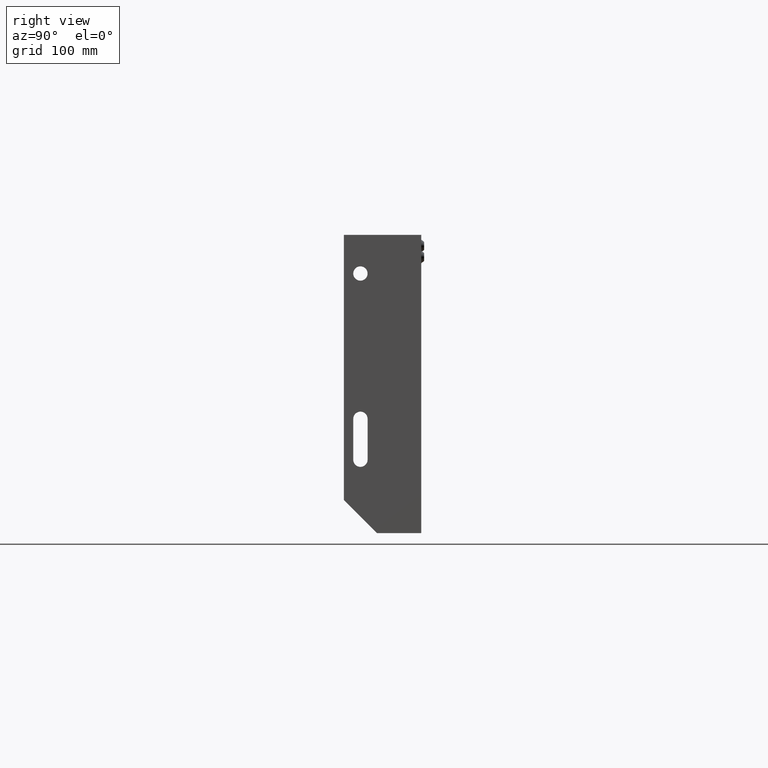
[diagram: clean part render]
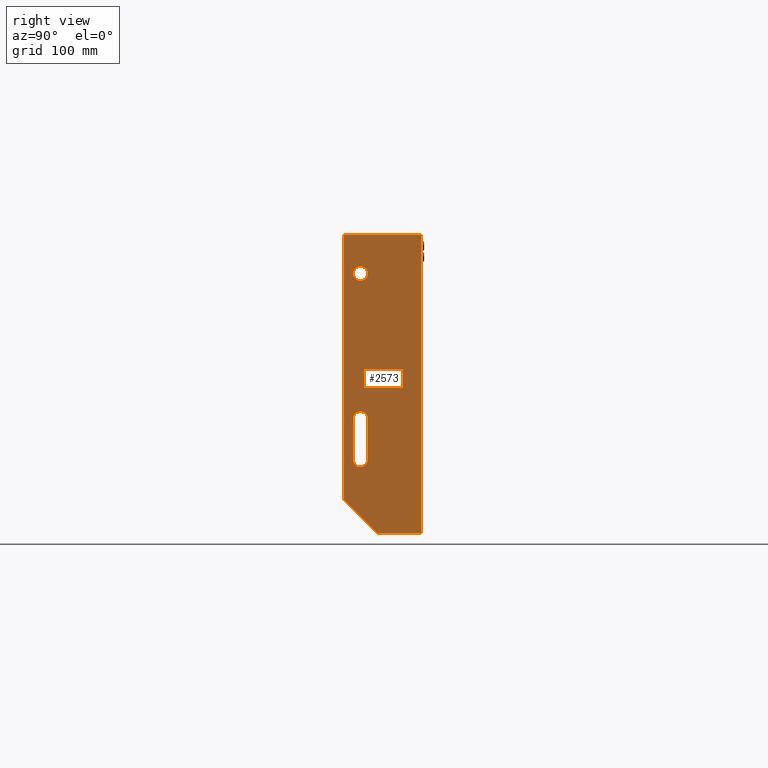
[diagram: same view with one face highlighted and labeled with its STEP entity id]
A machine part, right view. The second image highlights one B-rep face of the part: STEP entity #2573.
In plain terms, the highlighted planar face has unit normal (-1, 0, 0).
Its self-contained STEP definition (entity closure, byte-faithful):
#260 = FACE_BOUND ( 'NONE', #1184, .T. ) ;
#551 = ORIENTED_EDGE ( 'NONE', *, *, #19892, .F. ) ;
#972 = EDGE_CURVE ( 'NONE', #3770, #2846, #20979, .T. ) ;
#1184 = EDGE_LOOP ( 'NONE', ( #9736, #5749, #551, #20481, #2596 ) ) ;
#1252 = ORIENTED_EDGE ( 'NONE', *, *, #11578, .F. ) ;
#1356 = AXIS2_PLACEMENT_3D ( 'NONE', #20388, #2540, #12311 ) ;
#1365 = VERTEX_POINT ( 'NONE', #17236 ) ;
#1578 = VECTOR ( 'NONE', #12521, 1000.000000000000000 ) ;
#1589 = EDGE_CURVE ( 'NONE', #6382, #17509, #11763, .T. ) ;
#1989 = VERTEX_POINT ( 'NONE', #10033 ) ;
#2540 = DIRECTION ( 'NONE',  ( 1.000000000000000000, 0.0000000000000000000, 0.0000000000000000000 ) ) ;
#2573 = ADVANCED_FACE ( 'NONE', ( #260, #21883, #6144 ), #10808, .F. ) ;
#2596 = ORIENTED_EDGE ( 'NONE', *, *, #16659, .F. ) ;
#2846 = VERTEX_POINT ( 'NONE', #2957 ) ;
#2957 = CARTESIAN_POINT ( 'NONE',  ( 300.0000000000000000, 70.00000000000011400, 0.0000000000000000000 ) ) ;
#2994 = CARTESIAN_POINT ( 'NONE',  ( 300.0000000000000000, 8.500000000000072800, -166.4999999999999400 ) ) ;
#3246 = CIRCLE ( 'NONE', #22957, 6.500000000000005300 ) ;
#3397 = ORIENTED_EDGE ( 'NONE', *, *, #10109, .T. ) ;
#3609 = AXIS2_PLACEMENT_3D ( 'NONE', #23279, #5531, #25248 ) ;
#3730 = EDGE_CURVE ( 'NONE', #7483, #15548, #5998, .T. ) ;
#3770 = VERTEX_POINT ( 'NONE', #14303 ) ;
#4361 = CARTESIAN_POINT ( 'NONE',  ( 300.0000000000000000, 15.00000000000009200, -203.4999999999998900 ) ) ;
#4749 = EDGE_LOOP ( 'NONE', ( #3397, #10907, #12380, #6603, #5837 ) ) ;
#5462 = CIRCLE ( 'NONE', #3609, 6.499999999999999100 ) ;
#5531 = DIRECTION ( 'NONE',  ( 1.000000000000000000, 0.0000000000000000000, 0.0000000000000000000 ) ) ;
#5749 = ORIENTED_EDGE ( 'NONE', *, *, #1589, .F. ) ;
#5837 = ORIENTED_EDGE ( 'NONE', *, *, #20879, .T. ) ;
#5998 = CIRCLE ( 'NONE', #1356, 6.499999999999999100 ) ;
#6099 = LINE ( 'NONE', #15506, #10734 ) ;
#6144 = FACE_OUTER_BOUND ( 'NONE', #4749, .T. ) ;
#6161 = DIRECTION ( 'NONE',  ( -0.0000000000000000000, -0.0000000000000000000, 1.000000000000000000 ) ) ;
#6382 = VERTEX_POINT ( 'NONE', #8401 ) ;
#6482 = CARTESIAN_POINT ( 'NONE',  ( 300.0000000000000000, 15.00000000000008900, -166.4999999999999400 ) ) ;
#6499 = AXIS2_PLACEMENT_3D ( 'NONE', #22110, #6503, #14127 ) ;
#6503 = DIRECTION ( 'NONE',  ( 1.000000000000000000, 0.0000000000000000000, 0.0000000000000000000 ) ) ;
#6559 = DIRECTION ( 'NONE',  ( 0.0000000000000000000, 0.0000000000000000000, 1.000000000000000000 ) ) ;
#6603 = ORIENTED_EDGE ( 'NONE', *, *, #972, .T. ) ;
#7196 = CARTESIAN_POINT ( 'NONE',  ( 300.0000000000000000, 21.50000000000009600, -203.4999999999998900 ) ) ;
#7483 = VERTEX_POINT ( 'NONE', #11149 ) ;
#7794 = EDGE_CURVE ( 'NONE', #14569, #1989, #10509, .T. ) ;
#8176 = DIRECTION ( 'NONE',  ( -0.0000000000000000000, 0.7071067811865491300, -0.7071067811865459100 ) ) ;
#8401 = CARTESIAN_POINT ( 'NONE',  ( 300.0000000000000000, 21.50000000000010700, -166.4999999999999400 ) ) ;
#8632 = VECTOR ( 'NONE', #6161, 1000.000000000000000 ) ;
#8883 = DIRECTION ( 'NONE',  ( -0.0000000000000000000, 1.000000000000000000, -0.0000000000000000000 ) ) ;
#8998 = DIRECTION ( 'NONE',  ( -0.0000000000000000000, -1.000000000000000000, -0.0000000000000000000 ) ) ;
#9736 = ORIENTED_EDGE ( 'NONE', *, *, #18215, .F. ) ;
#10033 = CARTESIAN_POINT ( 'NONE',  ( 300.0000000000000000, 30.00000000000011700, -270.0000000000000000 ) ) ;
#10035 = CARTESIAN_POINT ( 'NONE',  ( 300.0000000000000000, 70.00000000000011400, 0.0000000000000000000 ) ) ;
#10109 = EDGE_CURVE ( 'NONE', #1365, #14569, #6099, .T. ) ;
#10214 = DIRECTION ( 'NONE',  ( 0.0000000000000000000, 0.0000000000000000000, -1.000000000000000000 ) ) ;
#10387 = LINE ( 'NONE', #24647, #12263 ) ;
#10444 = DIRECTION ( 'NONE',  ( -1.000000000000000000, 0.0000000000000000000, 0.0000000000000000000 ) ) ;
#10509 = LINE ( 'NONE', #12169, #17921 ) ;
#10734 = VECTOR ( 'NONE', #19358, 1000.000000000000000 ) ;
#10808 = PLANE ( 'NONE',  #12597 ) ;
#10907 = ORIENTED_EDGE ( 'NONE', *, *, #7794, .T. ) ;
#11116 = VECTOR ( 'NONE', #8998, 1000.000000000000000 ) ;
#11149 = CARTESIAN_POINT ( 'NONE',  ( 300.0000000000000000, 15.00000000000008900, -28.50000000000000400 ) ) ;
#11302 = DIRECTION ( 'NONE',  ( 0.0000000000000000000, 3.750753461571482800E-016, -1.000000000000000000 ) ) ;
#11578 = EDGE_CURVE ( 'NONE', #15548, #7483, #5462, .T. ) ;
#11763 = CIRCLE ( 'NONE', #22283, 6.500000000000005300 ) ;
#12169 = CARTESIAN_POINT ( 'NONE',  ( 300.0000000000000000, 30.00000000000011700, -270.0000000000000000 ) ) ;
#12263 = VECTOR ( 'NONE', #8883, 1000.000000000000000 ) ;
#12311 = DIRECTION ( 'NONE',  ( 0.0000000000000000000, 0.0000000000000000000, -1.000000000000000000 ) ) ;
#12380 = ORIENTED_EDGE ( 'NONE', *, *, #19377, .T. ) ;
#12521 = DIRECTION ( 'NONE',  ( 0.0000000000000000000, 3.750753461571482800E-016, 1.000000000000000000 ) ) ;
#12597 = AXIS2_PLACEMENT_3D ( 'NONE', #16510, #10444, #6559 ) ;
#12854 = EDGE_CURVE ( 'NONE', #18477, #24124, #3246, .T. ) ;
#13269 = VECTOR ( 'NONE', #11302, 1000.000000000000000 ) ;
#13336 = LINE ( 'NONE', #14252, #1578 ) ;
#13480 = CARTESIAN_POINT ( 'NONE',  ( 300.0000000000000000, 8.500000000000072800, -166.4999999999999400 ) ) ;
#14127 = DIRECTION ( 'NONE',  ( 0.0000000000000000000, 0.0000000000000000000, -1.000000000000000000 ) ) ;
#14252 = CARTESIAN_POINT ( 'NONE',  ( 300.0000000000000000, 21.50000000000009200, -203.4999999999998900 ) ) ;
#14278 = DIRECTION ( 'NONE',  ( 0.0000000000000000000, 0.0000000000000000000, -1.000000000000000000 ) ) ;
#14303 = CARTESIAN_POINT ( 'NONE',  ( 300.0000000000000000, 70.00000000000011400, -270.0000000000000000 ) ) ;
#14569 = VERTEX_POINT ( 'NONE', #23566 ) ;
#15506 = CARTESIAN_POINT ( 'NONE',  ( 300.0000000000000000, 1.102182119232617800E-013, -240.0000000000001700 ) ) ;
#15548 = VERTEX_POINT ( 'NONE', #19959 ) ;
#15802 = CIRCLE ( 'NONE', #6499, 6.500000000000005300 ) ;
#16510 = CARTESIAN_POINT ( 'NONE',  ( 300.0000000000000000, 0.0000000000000000000, 0.0000000000000000000 ) ) ;
#16659 = EDGE_CURVE ( 'NONE', #19456, #18477, #15802, .T. ) ;
#17236 = CARTESIAN_POINT ( 'NONE',  ( 300.0000000000000000, 1.102182119232617800E-013, 0.0000000000000000000 ) ) ;
#17509 = VERTEX_POINT ( 'NONE', #2994 ) ;
#17878 = LINE ( 'NONE', #13480, #13269 ) ;
#17921 = VECTOR ( 'NONE', #8176, 1000.000000000000100 ) ;
#18215 = EDGE_CURVE ( 'NONE', #17509, #19456, #17878, .T. ) ;
#18477 = VERTEX_POINT ( 'NONE', #22633 ) ;
#18852 = CARTESIAN_POINT ( 'NONE',  ( 300.0000000000000000, 1.102182119232617800E-013, 0.0000000000000000000 ) ) ;
#19358 = DIRECTION ( 'NONE',  ( -0.0000000000000000000, -0.0000000000000000000, -1.000000000000000000 ) ) ;
#19377 = EDGE_CURVE ( 'NONE', #1989, #3770, #10387, .T. ) ;
#19456 = VERTEX_POINT ( 'NONE', #24983 ) ;
#19892 = EDGE_CURVE ( 'NONE', #24124, #6382, #13336, .T. ) ;
#19959 = CARTESIAN_POINT ( 'NONE',  ( 300.0000000000000000, 15.00000000000008900, -41.50000000000000000 ) ) ;
#20275 = DIRECTION ( 'NONE',  ( 1.000000000000000000, 0.0000000000000000000, 0.0000000000000000000 ) ) ;
#20388 = CARTESIAN_POINT ( 'NONE',  ( 300.0000000000000000, 15.00000000000008900, -35.00000000000000000 ) ) ;
#20481 = ORIENTED_EDGE ( 'NONE', *, *, #12854, .F. ) ;
#20879 = EDGE_CURVE ( 'NONE', #2846, #1365, #22824, .T. ) ;
#20979 = LINE ( 'NONE', #10035, #8632 ) ;
#21141 = ORIENTED_EDGE ( 'NONE', *, *, #3730, .F. ) ;
#21239 = EDGE_LOOP ( 'NONE', ( #1252, #21141 ) ) ;
#21883 = FACE_BOUND ( 'NONE', #21239, .T. ) ;
#22030 = DIRECTION ( 'NONE',  ( 1.000000000000000000, 0.0000000000000000000, 0.0000000000000000000 ) ) ;
#22110 = CARTESIAN_POINT ( 'NONE',  ( 300.0000000000000000, 15.00000000000009200, -203.4999999999998900 ) ) ;
#22283 = AXIS2_PLACEMENT_3D ( 'NONE', #6482, #20275, #14278 ) ;
#22633 = CARTESIAN_POINT ( 'NONE',  ( 300.0000000000000000, 15.00000000000009200, -209.9999999999998900 ) ) ;
#22824 = LINE ( 'NONE', #18852, #11116 ) ;
#22957 = AXIS2_PLACEMENT_3D ( 'NONE', #4361, #22030, #10214 ) ;
#23279 = CARTESIAN_POINT ( 'NONE',  ( 300.0000000000000000, 15.00000000000008900, -35.00000000000000000 ) ) ;
#23566 = CARTESIAN_POINT ( 'NONE',  ( 300.0000000000000000, 1.102182119232617800E-013, -240.0000000000001700 ) ) ;
#24124 = VERTEX_POINT ( 'NONE', #7196 ) ;
#24647 = CARTESIAN_POINT ( 'NONE',  ( 300.0000000000000000, 70.00000000000011400, -270.0000000000000000 ) ) ;
#24983 = CARTESIAN_POINT ( 'NONE',  ( 300.0000000000000000, 8.500000000000087000, -203.4999999999998900 ) ) ;
#25248 = DIRECTION ( 'NONE',  ( 0.0000000000000000000, 0.0000000000000000000, -1.000000000000000000 ) ) ;